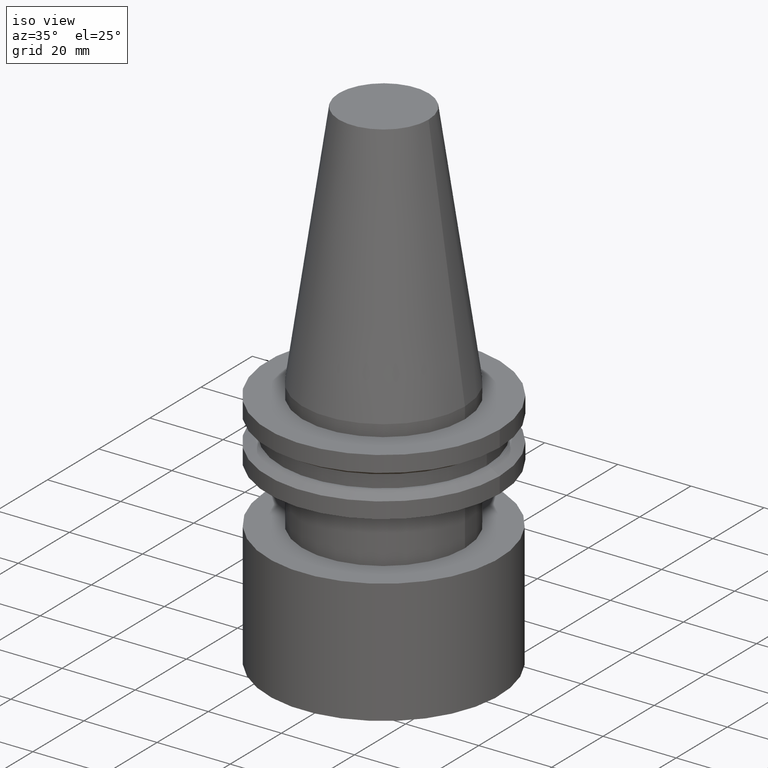
[diagram: clean part render]
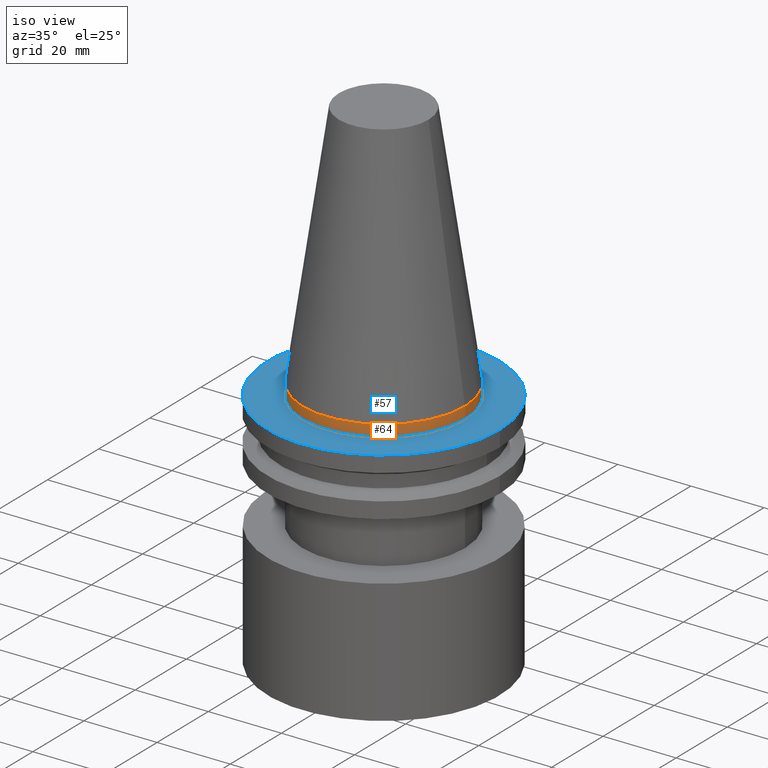
[diagram: same view with the hole feature highlighted: cylindrical wall and planar end face, labeled with their STEP entity ids]
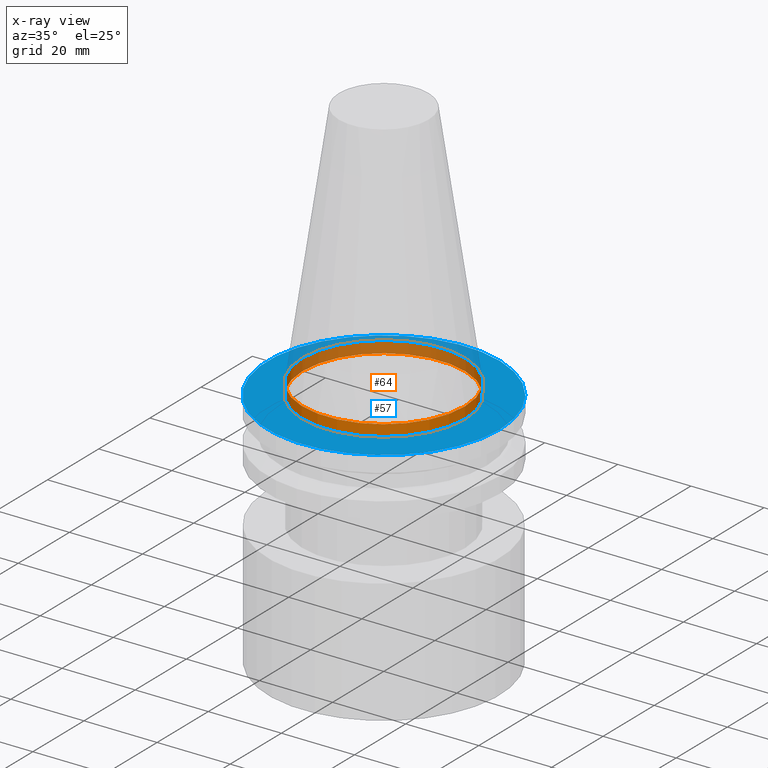
[diagram: x-ray of the same camera — body ghosted, the hole faces saturated]
A machine part, iso view. The highlighted faces form one hole feature of diameter 44.45 mm: the cylindrical wall (entity #64, orange) and its adjacent planar end face (entity #57, blue) — they share a circular edge in the B-rep.
The next image is the same camera in x-ray (body ghosted, the hole faces saturated) — the bore reads through the body.
Wall:
#2 = CARTESIAN_POINT ( 'NONE',  ( 22.22500000000000142, 0.000000000000000000, -3.174999999999997158 ) ) ;
#11 = FACE_OUTER_BOUND ( 'NONE', #192, .T. ) ;
#13 = CARTESIAN_POINT ( 'NONE',  ( 0.000000000000000000, 0.000000000000000000, 68.25000000000000000 ) ) ;
#43 = DIRECTION ( 'NONE',  ( -0.000000000000000000, -0.000000000000000000, 1.000000000000000000 ) ) ;
#48 = CARTESIAN_POINT ( 'NONE',  ( 22.22500000000000142, 0.000000000000000000, 0.000000000000000000 ) ) ;
#62 = ORIENTED_EDGE ( 'NONE', *, *, #370, .T. ) ;
#64 = ADVANCED_FACE ( 'NONE', ( #11, #130 ), #164, .T. ) ;
#69 = AXIS2_PLACEMENT_3D ( 'NONE', #216, #80, #115 ) ;
#75 = CIRCLE ( 'NONE', #69, 22.22500000000000142 ) ;
#80 = DIRECTION ( 'NONE',  ( -0.000000000000000000, -0.000000000000000000, 1.000000000000000000 ) ) ;
#84 = VERTEX_POINT ( 'NONE', #48 ) ;
#115 = DIRECTION ( 'NONE',  ( 1.000000000000000000, 0.000000000000000000, 0.000000000000000000 ) ) ;
#123 = EDGE_LOOP ( 'NONE', ( #62 ) ) ;
#130 = FACE_OUTER_BOUND ( 'NONE', #123, .T. ) ;
#164 = CYLINDRICAL_SURFACE ( 'NONE', #231, 22.22500000000000142 ) ;
#170 = CARTESIAN_POINT ( 'NONE',  ( 0.000000000000000000, 0.000000000000000000, -3.174999999999997158 ) ) ;
#179 = VERTEX_POINT ( 'NONE', #2 ) ;
#190 = ORIENTED_EDGE ( 'NONE', *, *, #317, .F. ) ;
#192 = EDGE_LOOP ( 'NONE', ( #190 ) ) ;
#200 = DIRECTION ( 'NONE',  ( -0.000000000000000000, -0.000000000000000000, 1.000000000000000000 ) ) ;
#201 = DIRECTION ( 'NONE',  ( 1.000000000000000000, 0.000000000000000000, 0.000000000000000000 ) ) ;
#216 = CARTESIAN_POINT ( 'NONE',  ( 0.000000000000000000, 0.000000000000000000, 0.000000000000000000 ) ) ;
#231 = AXIS2_PLACEMENT_3D ( 'NONE', #13, #200, #271 ) ;
#271 = DIRECTION ( 'NONE',  ( 1.000000000000000000, 0.000000000000000000, 0.000000000000000000 ) ) ;
#304 = AXIS2_PLACEMENT_3D ( 'NONE', #170, #43, #201 ) ;
#317 = EDGE_CURVE ( 'NONE', #84, #84, #75, .T. ) ;
#343 = CIRCLE ( 'NONE', #304, 22.22500000000000142 ) ;
#370 = EDGE_CURVE ( 'NONE', #179, #179, #343, .T. ) ;
End face:
#2 = CARTESIAN_POINT ( 'NONE',  ( 22.22500000000000142, 0.000000000000000000, -3.174999999999997158 ) ) ;
#36 = CARTESIAN_POINT ( 'NONE',  ( 0.000000000000000000, 0.000000000000000000, -3.174999999999997158 ) ) ;
#43 = DIRECTION ( 'NONE',  ( -0.000000000000000000, -0.000000000000000000, 1.000000000000000000 ) ) ;
#53 = EDGE_CURVE ( 'NONE', #102, #102, #335, .T. ) ;
#57 = ADVANCED_FACE ( 'NONE', ( #234, #345 ), #386, .F. ) ;
#71 = DIRECTION ( 'NONE',  ( 0.000000000000000000, 0.000000000000000000, -1.000000000000000000 ) ) ;
#102 = VERTEX_POINT ( 'NONE', #172 ) ;
#157 = DIRECTION ( 'NONE',  ( -0.000000000000000000, -0.000000000000000000, 1.000000000000000000 ) ) ;
#159 = EDGE_LOOP ( 'NONE', ( #342 ) ) ;
#170 = CARTESIAN_POINT ( 'NONE',  ( 0.000000000000000000, 0.000000000000000000, -3.174999999999997158 ) ) ;
#172 = CARTESIAN_POINT ( 'NONE',  ( 31.75000000000000000, 0.000000000000000000, -3.174999999999997158 ) ) ;
#179 = VERTEX_POINT ( 'NONE', #2 ) ;
#195 = EDGE_LOOP ( 'NONE', ( #316 ) ) ;
#201 = DIRECTION ( 'NONE',  ( 1.000000000000000000, 0.000000000000000000, 0.000000000000000000 ) ) ;
#206 = AXIS2_PLACEMENT_3D ( 'NONE', #36, #157, #290 ) ;
#234 = FACE_BOUND ( 'NONE', #159, .T. ) ;
#236 = CARTESIAN_POINT ( 'NONE',  ( 0.000000000000000000, 31.75000000000000000, -3.174999999999999378 ) ) ;
#290 = DIRECTION ( 'NONE',  ( 1.000000000000000000, 0.000000000000000000, 0.000000000000000000 ) ) ;
#304 = AXIS2_PLACEMENT_3D ( 'NONE', #170, #43, #201 ) ;
#308 = AXIS2_PLACEMENT_3D ( 'NONE', #236, #71, #321 ) ;
#316 = ORIENTED_EDGE ( 'NONE', *, *, #53, .T. ) ;
#321 = DIRECTION ( 'NONE',  ( -1.000000000000000000, 0.000000000000000000, -0.000000000000000000 ) ) ;
#335 = CIRCLE ( 'NONE', #206, 31.75000000000000000 ) ;
#342 = ORIENTED_EDGE ( 'NONE', *, *, #370, .F. ) ;
#343 = CIRCLE ( 'NONE', #304, 22.22500000000000142 ) ;
#345 = FACE_OUTER_BOUND ( 'NONE', #195, .T. ) ;
#370 = EDGE_CURVE ( 'NONE', #179, #179, #343, .T. ) ;
#386 = PLANE ( 'NONE',  #308 ) ;